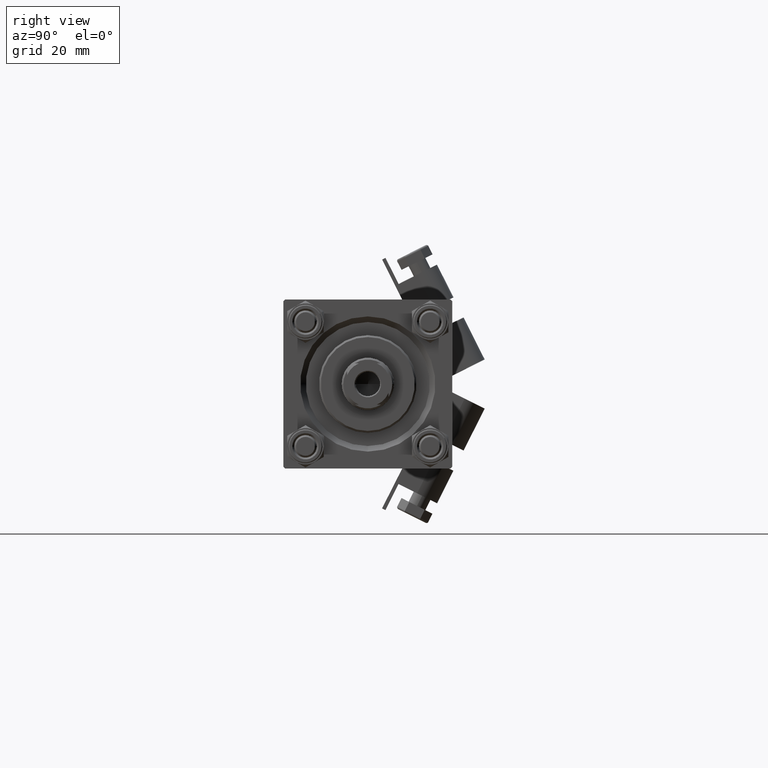
[diagram: clean part render]
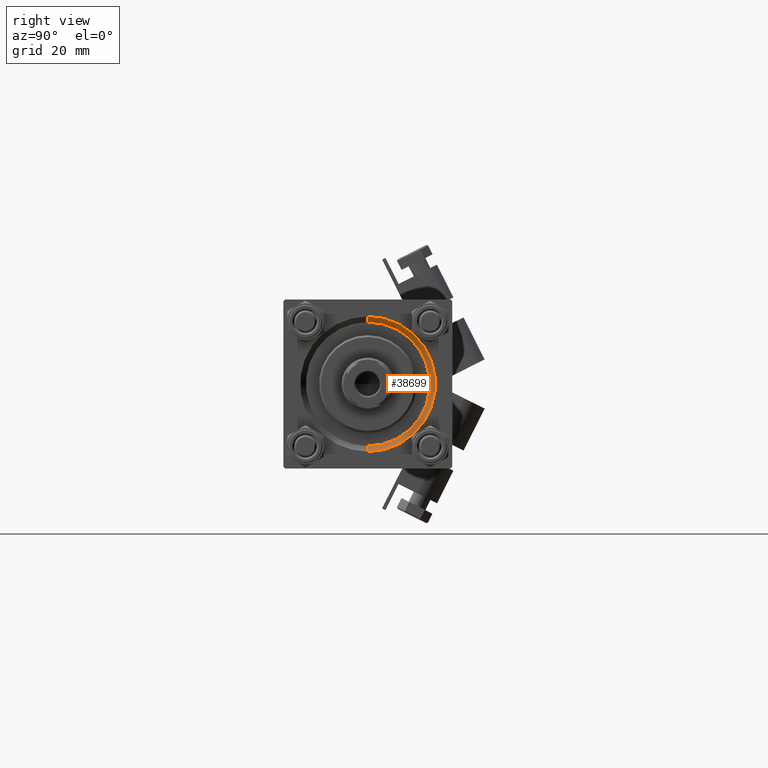
[diagram: same view with one face highlighted and labeled with its STEP entity id]
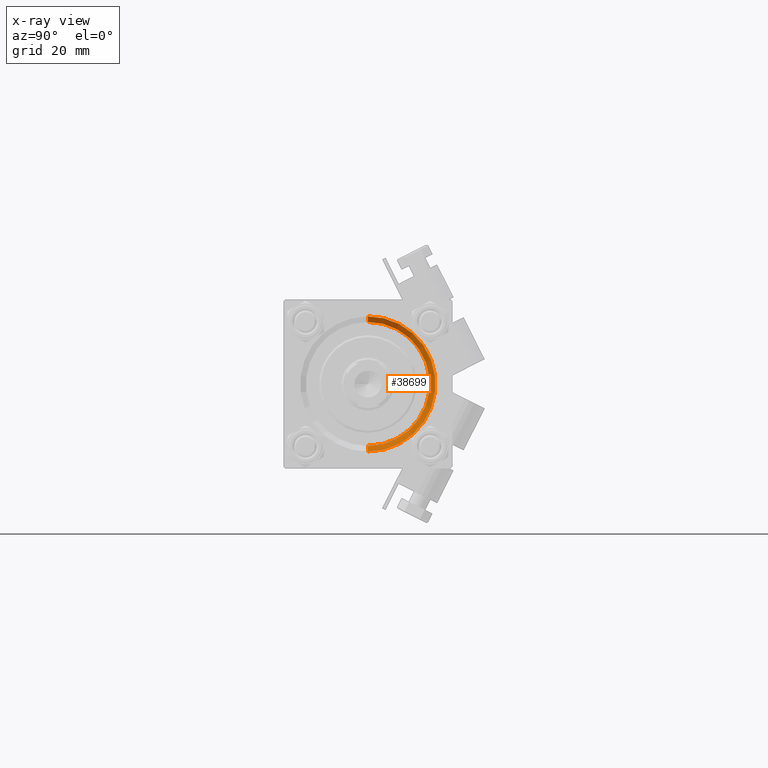
[diagram: x-ray of the same camera — body ghosted, the highlighted face saturated]
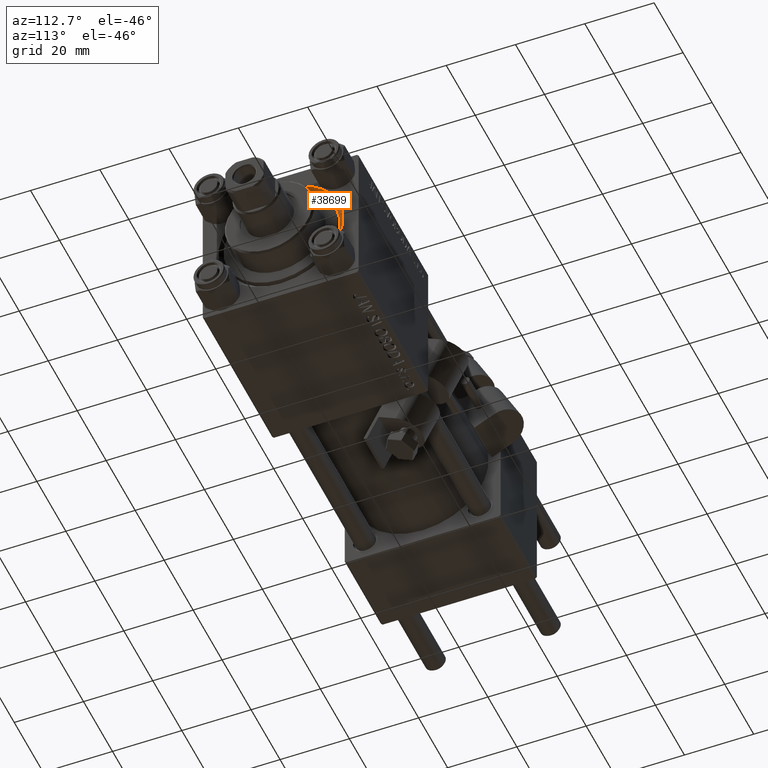
[diagram: same view with one face highlighted and labeled with its STEP entity id]
A machine part, right view. The second image highlights one B-rep face of the part: STEP entity #38699.
The next image is the same camera in x-ray: the body ghosted, the highlighted face saturated — about 0% of this face is hidden behind the body in this view.
A second angle (auxiliary view) of the same face is appended — the face is thin or edge-on in the first view.
In plain terms, the highlighted conical surface has half-angle 45 deg.
Its self-contained STEP definition (entity closure, byte-faithful):
#141 = AXIS2_PLACEMENT_3D ( 'NONE', #47302, #1635, #20973 ) ;
#1519 = CARTESIAN_POINT ( 'NONE',  ( 123.0000000000000142, 2.204364238465235822E-15, 18.00000000000000355 ) ) ;
#1635 = DIRECTION ( 'NONE',  ( -1.000000000000000000, 0.000000000000000000, -0.000000000000000000 ) ) ;
#1987 = VERTEX_POINT ( 'NONE', #4786 ) ;
#2006 = VECTOR ( 'NONE', #19246, 1000.000000000000114 ) ;
#3126 = DIRECTION ( 'NONE',  ( 1.000000000000000000, 0.000000000000000000, 0.000000000000000000 ) ) ;
#3875 = CARTESIAN_POINT ( 'NONE',  ( 121.5000000000000142, 0.000000000000000000, 0.000000000000000000 ) ) ;
#4786 = CARTESIAN_POINT ( 'NONE',  ( 121.5000000000000142, 2.020667218593133100E-15, 16.50000000000000000 ) ) ;
#5117 = VERTEX_POINT ( 'NONE', #22963 ) ;
#5409 = AXIS2_PLACEMENT_3D ( 'NONE', #3875, #3126, #31738 ) ;
#6859 = CARTESIAN_POINT ( 'NONE',  ( 121.5000000000000142, 0.000000000000000000, -16.50000000000000000 ) ) ;
#6880 = ORIENTED_EDGE ( 'NONE', *, *, #31208, .F. ) ;
#7055 = CIRCLE ( 'NONE', #5409, 16.50000000000000000 ) ;
#9235 = EDGE_LOOP ( 'NONE', ( #22049, #6880, #20155, #34793 ) ) ;
#12130 = CONICAL_SURFACE ( 'NONE', #37647, 16.50000000000000000, 0.7853981633974482790 ) ;
#15781 = EDGE_CURVE ( 'NONE', #1987, #33743, #19123, .T. ) ;
#18159 = VECTOR ( 'NONE', #22479, 1000.000000000000114 ) ;
#19123 = LINE ( 'NONE', #22729, #18159 ) ;
#19246 = DIRECTION ( 'NONE',  ( 0.7071067811865474617, 0.000000000000000000, -0.7071067811865474617 ) ) ;
#20155 = ORIENTED_EDGE ( 'NONE', *, *, #28877, .T. ) ;
#20973 = DIRECTION ( 'NONE',  ( 0.000000000000000000, 0.000000000000000000, 1.000000000000000000 ) ) ;
#22049 = ORIENTED_EDGE ( 'NONE', *, *, #15781, .F. ) ;
#22106 = VERTEX_POINT ( 'NONE', #23288 ) ;
#22479 = DIRECTION ( 'NONE',  ( 0.7071067811865474617, 8.659560562354932858E-17, 0.7071067811865474617 ) ) ;
#22729 = CARTESIAN_POINT ( 'NONE',  ( 121.5000000000000142, 2.020667218593133100E-15, 16.50000000000000000 ) ) ;
#22963 = CARTESIAN_POINT ( 'NONE',  ( 123.0000000000000142, 0.000000000000000000, -18.00000000000000355 ) ) ;
#23288 = CARTESIAN_POINT ( 'NONE',  ( 121.5000000000000142, 0.000000000000000000, -16.50000000000000000 ) ) ;
#28877 = EDGE_CURVE ( 'NONE', #22106, #5117, #50396, .T. ) ;
#31208 = EDGE_CURVE ( 'NONE', #22106, #1987, #7055, .T. ) ;
#31736 = FACE_OUTER_BOUND ( 'NONE', #9235, .T. ) ;
#31738 = DIRECTION ( 'NONE',  ( 0.000000000000000000, 0.000000000000000000, 1.000000000000000000 ) ) ;
#32274 = CIRCLE ( 'NONE', #141, 18.00000000000000355 ) ;
#33743 = VERTEX_POINT ( 'NONE', #1519 ) ;
#34793 = ORIENTED_EDGE ( 'NONE', *, *, #48295, .F. ) ;
#35589 = DIRECTION ( 'NONE',  ( 1.000000000000000000, 0.000000000000000000, 0.000000000000000000 ) ) ;
#35839 = DIRECTION ( 'NONE',  ( 0.000000000000000000, 0.000000000000000000, -1.000000000000000000 ) ) ;
#37647 = AXIS2_PLACEMENT_3D ( 'NONE', #40468, #35589, #35839 ) ;
#38699 = ADVANCED_FACE ( 'NONE', ( #31736 ), #12130, .F. ) ;
#40468 = CARTESIAN_POINT ( 'NONE',  ( 121.5000000000000142, 0.000000000000000000, 0.000000000000000000 ) ) ;
#47302 = CARTESIAN_POINT ( 'NONE',  ( 123.0000000000000142, 0.000000000000000000, 0.000000000000000000 ) ) ;
#48295 = EDGE_CURVE ( 'NONE', #33743, #5117, #32274, .T. ) ;
#50396 = LINE ( 'NONE', #6859, #2006 ) ;